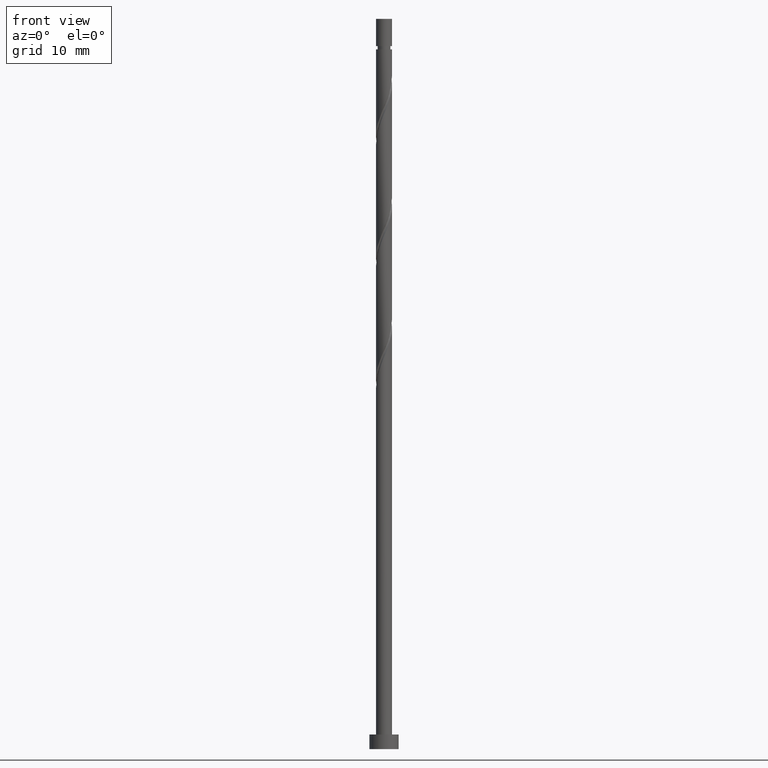
[diagram: clean part render]
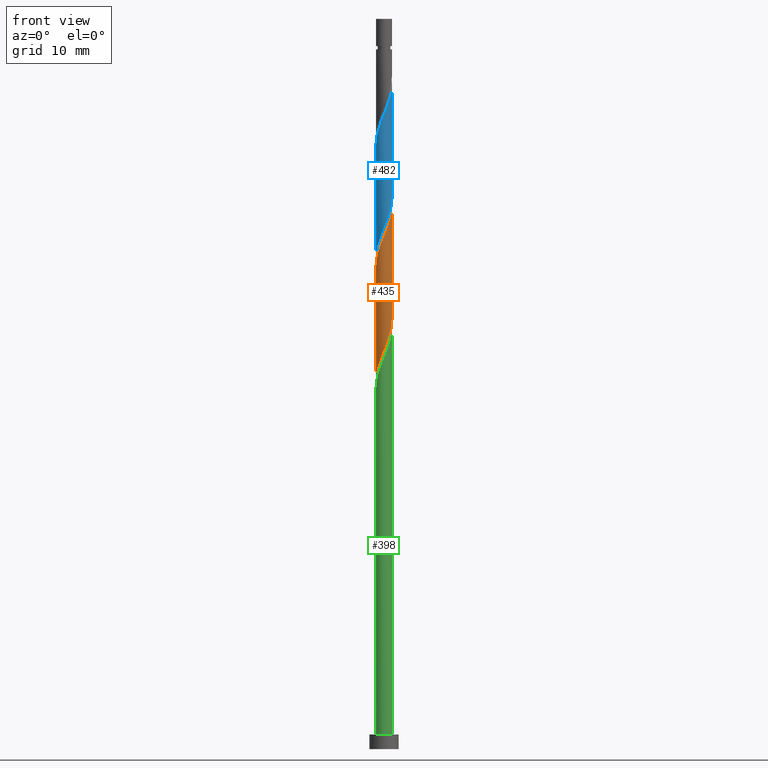
[diagram: same view with three faces highlighted in distinct colors, each labeled with its STEP entity id]
A machine part, front view with three faces highlighted in distinct colors.
Their STEP definitions:

[orange] entity #435 — the highlighted cylindrical surface (edge-blend (fillet) strip) has radius 1.1 mm, axis along (-0, -0, -1).
#12 = EDGE_CURVE ( 'NONE', #1101, #289, #198, .T. ) ;
#70 = EDGE_CURVE ( 'NONE', #289, #1154, #670, .T. ) ;
#88 = DIRECTION ( 'NONE',  ( -0.000000000000000000, -0.000000000000000000, -1.000000000000000000 ) ) ;
#97 = CARTESIAN_POINT ( 'NONE',  ( -1.043024003361354923, -0.3494294326642453652, 51.37571694667045819 ) ) ;
#128 = ORIENTED_EDGE ( 'NONE', *, *, #1298, .F. ) ;
#135 = CARTESIAN_POINT ( 'NONE',  ( -0.1630015969718410784, -1.087855909293428569, 69.89423546518897012 ) ) ;
#137 = ORIENTED_EDGE ( 'NONE', *, *, #747, .T. ) ;
#150 = CARTESIAN_POINT ( 'NONE',  ( -1.100000000000001643, 7.021314277040035436E-16, 66.12263983612612606 ) ) ;
#165 = VECTOR ( 'NONE', #329, 1000.000000000000000 ) ;
#171 = CARTESIAN_POINT ( 'NONE',  ( 1.094629887612834862, -0.2222740788686128899, 58.32016139111491526 ) ) ;
#198 =( BOUNDED_CURVE ( )  B_SPLINE_CURVE ( 2, ( #150, #599, #382, #847, #1297, #262, #727, #1184, #822, #1162, #135, #587, #1052, #404, #1221, #991, #763, #1439, #757, #1193, #855 ),
 .UNSPECIFIED., .F., .T. ) 
 B_SPLINE_CURVE_WITH_KNOTS ( ( 3, 2, 2, 2, 2, 2, 2, 2, 2, 2, 3 ),
 ( 0.3045248053855289516, 0.3055555555555555802, 0.3194444444444444198, 0.3333333333333333703, 0.3472222222222222099, 0.3611111111111111605, 0.3750000000000000000, 0.3888888888888888395, 0.4027777777777777901, 0.4166666666666666297, 0.4295248053855290071 ),
 .UNSPECIFIED. ) 
 CURVE ( )  GEOMETRIC_REPRESENTATION_ITEM ( )  RATIONAL_B_SPLINE_CURVE ( ( 0.9071930855141264738, 0.9080659294509741963, 0.9090909090909143897, 0.8952797754656487417, 0.9090909090909143897, 0.8952797754656487417, 0.9090909090909143897, 0.8952797754656487417, 0.9090909090909143897, 0.8952797754656487417, 0.9090909090909143897, 0.8952797754656487417, 0.9090909090909143897, 0.8952797754656487417, 0.9090909090909143897, 0.8952797754656487417, 0.9090909090909143897, 0.8952797754656487417, 0.9090909090909143897, 0.8963047551055889350, 0.9071930855141264738 ) ) 
 REPRESENTATION_ITEM ( '' )  );
#200 = CARTESIAN_POINT ( 'NONE',  ( -1.100000000000002309, 3.482310449497200798E-13, 50.51768294610282339 ) ) ;
#205 = CARTESIAN_POINT ( 'NONE',  ( -0.8606100546192091416, -0.6850914784817612180, 52.30164287259638201 ) ) ;
#211 = CARTESIAN_POINT ( 'NONE',  ( -1.100000000000000089, 0.000000000000000000, 100.0000000000000000 ) ) ;
#259 = EDGE_LOOP ( 'NONE', ( #982, #1342, #137, #128 ) ) ;
#262 = CARTESIAN_POINT ( 'NONE',  ( -0.9525934155692653560, -0.5832547827547226449, 67.57942065037416057 ) ) ;
#289 = VERTEX_POINT ( 'NONE', #1175 ) ;
#326 = AXIS2_PLACEMENT_3D ( 'NONE', #438, #895, #560 ) ;
#329 = DIRECTION ( 'NONE',  ( -0.000000000000000000, -0.000000000000000000, -1.000000000000000000 ) ) ;
#344 = CARTESIAN_POINT ( 'NONE',  ( -0.2188972361634567987, -1.078000000000001402, 54.15349472444821544 ) ) ;
#374 = CARTESIAN_POINT ( 'NONE',  ( 0.5252400318649718125, -0.9665003408827577136, 56.00534657630007729 ) ) ;
#382 = CARTESIAN_POINT ( 'NONE',  ( -1.099633863903274111, -0.02837895976176513582, 66.19053176148526063 ) ) ;
#384 = CARTESIAN_POINT ( 'NONE',  ( 0.6956601188265305602, -0.8738863519167895388, 56.46830953926305341 ) ) ;
#387 = CARTESIAN_POINT ( 'NONE',  ( 1.100000000000002309, -0.01419184176522177848, 58.81699890550463294 ) ) ;
#404 = CARTESIAN_POINT ( 'NONE',  ( 0.4089777213671819678, -1.039402511261871886, 71.28312435407787007 ) ) ;
#435 = ADVANCED_FACE ( 'NONE', ( #1241 ), #1350, .T. ) ;
#438 = CARTESIAN_POINT ( 'NONE',  ( 0.000000000000000000, 0.000000000000000000, 100.0000000000000000 ) ) ;
#463 = CARTESIAN_POINT ( 'NONE',  ( 0.9525934155692650229, -0.5832547827547235331, 57.39423546518897723 ) ) ;
#473 = CARTESIAN_POINT ( 'NONE',  ( 0.3548199449034128428, -1.059114329848726888, 55.54238361333711538 ) ) ;
#560 = DIRECTION ( 'NONE',  ( -1.000000000000000000, 0.000000000000000000, 0.000000000000000000 ) ) ;
#587 = CARTESIAN_POINT ( 'NONE',  ( 0.02881675095973075876, -1.116597488738132027, 70.35719842815196046 ) ) ;
#598 = CARTESIAN_POINT ( 'NONE',  ( 1.100000000000002087, 1.923391942912560376E-16, 58.85101627943698333 ) ) ;
#599 = CARTESIAN_POINT ( 'NONE',  ( -1.100000000000001643, -0.01419184176522127715, 66.15665721005848354 ) ) ;
#661 = CARTESIAN_POINT ( 'NONE',  ( -0.9814101665289963750, -0.5333427059834092709, 51.83867990963342010 ) ) ;
#670 = LINE ( 'NONE', #1360, #1286 ) ;
#721 = CARTESIAN_POINT ( 'NONE',  ( -0.7398099427094219083, -0.8368402509801140532, 52.76460583555933681 ) ) ;
#727 = CARTESIAN_POINT ( 'NONE',  ( -0.8241267671978979026, -0.7285705673357556478, 68.04238361333712248 ) ) ;
#747 = EDGE_CURVE ( 'NONE', #1101, #973, #1341, .T. ) ;
#757 = CARTESIAN_POINT ( 'NONE',  ( 1.043024003361354257, -0.3494294326642461423, 73.59793916889269383 ) ) ;
#763 = CARTESIAN_POINT ( 'NONE',  ( 0.8606100546192090306, -0.6850914784817612180, 72.67201324296674159 ) ) ;
#822 = CARTESIAN_POINT ( 'NONE',  ( -0.5252400318649721456, -0.9665003408827576026, 68.96830953926306051 ) ) ;
#840 = CARTESIAN_POINT ( 'NONE',  ( -0.5743938320383019658, -0.9381213811209921927, 53.22756879852229872 ) ) ;
#847 = CARTESIAN_POINT ( 'NONE',  ( -1.094629887612834862, -0.2222740788686125291, 66.65349472444823675 ) ) ;
#850 = CARTESIAN_POINT ( 'NONE',  ( 0.1630015969718409119, -1.087855909293429457, 55.07942065037414636 ) ) ;
#855 = CARTESIAN_POINT ( 'NONE',  ( 1.100000000000001643, -7.245398775243440088E-16, 74.45597316945948307 ) ) ;
#895 = DIRECTION ( 'NONE',  ( -0.000000000000000000, -0.000000000000000000, -1.000000000000000000 ) ) ;
#905 = CARTESIAN_POINT ( 'NONE',  ( -0.02881675095973152551, -1.116597488738132249, 54.61645768741120577 ) ) ;
#924 = CARTESIAN_POINT ( 'NONE',  ( 0.8241267671978976805, -0.7285705673357567580, 56.93127250222601532 ) ) ;
#930 = CARTESIAN_POINT ( 'NONE',  ( -0.4089777213671825784, -1.039402511261871664, 53.69053176148527484 ) ) ;
#971 =( BOUNDED_CURVE ( )  B_SPLINE_CURVE ( 2, ( #1413, #387, #1200, #171, #1086, #463, #924, #384, #374, #473, #850, #905, #344, #930, #840, #721, #205, #661, #97, #1472, #1205 ),
 .UNSPECIFIED., .F., .T. ) 
 B_SPLINE_CURVE_WITH_KNOTS ( ( 3, 2, 2, 2, 2, 2, 2, 2, 2, 2, 3 ),
 ( 0.8045248053855289516, 0.8055555555555555802, 0.8194444444444444198, 0.8333333333333333703, 0.8472222222222222099, 0.8611111111111111605, 0.8750000000000000000, 0.8888888888888888395, 0.9027777777777777901, 0.9166666666666666297, 0.9295248053855417192 ),
 .UNSPECIFIED. ) 
 CURVE ( )  GEOMETRIC_REPRESENTATION_ITEM ( )  RATIONAL_B_SPLINE_CURVE ( ( 0.9071930855141274730, 0.9080659294509751955, 0.9090909090909153889, 0.8952797754656497409, 0.9090909090909153889, 0.8952797754656497409, 0.9090909090909153889, 0.8952797754656497409, 0.9090909090909153889, 0.8952797754656497409, 0.9090909090909153889, 0.8952797754656497409, 0.9090909090909153889, 0.8952797754656497409, 0.9090909090909153889, 0.8952797754656497409, 0.9090909090909153889, 0.8952797754656497409, 0.9090909090909153889, 0.8963047551055772777, 0.9071930855141490113 ) ) 
 REPRESENTATION_ITEM ( '' )  );
#973 = VERTEX_POINT ( 'NONE', #200 ) ;
#982 = ORIENTED_EDGE ( 'NONE', *, *, #70, .F. ) ;
#991 = CARTESIAN_POINT ( 'NONE',  ( 0.7398099427094214642, -0.8368402509801139422, 72.20905028000380810 ) ) ;
#1002 = CARTESIAN_POINT ( 'NONE',  ( -1.100000000000001643, 7.021314277040034450E-16, 66.12263983612612606 ) ) ;
#1052 = CARTESIAN_POINT ( 'NONE',  ( 0.2188972361634565766, -1.078000000000001624, 70.82016139111489395 ) ) ;
#1086 = CARTESIAN_POINT ( 'NONE',  ( 1.023611651591050054, -0.4027644308116674621, 57.85719842815192493 ) ) ;
#1101 = VERTEX_POINT ( 'NONE', #1002 ) ;
#1154 = VERTEX_POINT ( 'NONE', #598 ) ;
#1162 = CARTESIAN_POINT ( 'NONE',  ( -0.3548199449034129538, -1.059114329848726443, 69.43127250222602243 ) ) ;
#1175 = CARTESIAN_POINT ( 'NONE',  ( 1.100000000000001643, -7.245398775243440088E-16, 74.45597316945946886 ) ) ;
#1184 = CARTESIAN_POINT ( 'NONE',  ( -0.6956601188265306712, -0.8738863519167894278, 68.50534657630009860 ) ) ;
#1193 = CARTESIAN_POINT ( 'NONE',  ( 1.100000000000000977, -0.1793598090025041170, 74.02605365709383989 ) ) ;
#1200 = CARTESIAN_POINT ( 'NONE',  ( 1.099633863903273889, -0.02837895976176561114, 58.78312435407785586 ) ) ;
#1205 = CARTESIAN_POINT ( 'NONE',  ( -1.100000000000002309, 3.482310449497200798E-13, 50.51768294610282339 ) ) ;
#1221 = CARTESIAN_POINT ( 'NONE',  ( 0.5743938320383018548, -0.9381213811209924147, 71.74608731704080355 ) ) ;
#1241 = FACE_OUTER_BOUND ( 'NONE', #259, .T. ) ;
#1286 = VECTOR ( 'NONE', #88, 1000.000000000000000 ) ;
#1297 = CARTESIAN_POINT ( 'NONE',  ( -1.023611651591049831, -0.4027644308116674621, 67.11645768741119866 ) ) ;
#1298 = EDGE_CURVE ( 'NONE', #1154, #973, #971, .T. ) ;
#1341 = LINE ( 'NONE', #211, #165 ) ;
#1342 = ORIENTED_EDGE ( 'NONE', *, *, #12, .F. ) ;
#1350 = CYLINDRICAL_SURFACE ( 'NONE', #326, 1.100000000000000089 ) ;
#1360 = CARTESIAN_POINT ( 'NONE',  ( 1.100000000000000089, 1.347111479062088503E-16, 100.0000000000000000 ) ) ;
#1413 = CARTESIAN_POINT ( 'NONE',  ( 1.100000000000002087, 1.923391942912560376E-16, 58.85101627943698333 ) ) ;
#1439 = CARTESIAN_POINT ( 'NONE',  ( 0.9814101665289961529, -0.5333427059834093820, 73.13497620592974613 ) ) ;
#1472 = CARTESIAN_POINT ( 'NONE',  ( -1.100000000000059153, -0.1793598090023328928, 50.94760245846887159 ) ) ;

[blue] entity #482 — the highlighted cylindrical surface (edge-blend (fillet) strip) has radius 1.1 mm, axis along (-0, -0, -1).
#14 = CARTESIAN_POINT ( 'NONE',  ( 0.5743938320383018548, -0.9381213811209924147, 88.41275398370753180 ) ) ;
#149 = CARTESIAN_POINT ( 'NONE',  ( -1.099633863903274111, -0.02837895976176513582, 82.85719842815196046 ) ) ;
#162 = VERTEX_POINT ( 'NONE', #553 ) ;
#193 = CARTESIAN_POINT ( 'NONE',  ( 0.5252400318649718125, -0.9665003408827577136, 72.67201324296672738 ) ) ;
#231 = CARTESIAN_POINT ( 'NONE',  ( 0.02881675095973075876, -1.116597488738132027, 87.02386509481863186 ) ) ;
#246 = CARTESIAN_POINT ( 'NONE',  ( -1.100000000000001643, -0.01419184176521504775, 82.82332387672516916 ) ) ;
#311 = CARTESIAN_POINT ( 'NONE',  ( -0.4089777213671825784, -1.039402511261871664, 70.35719842815194625 ) ) ;
#332 = DIRECTION ( 'NONE',  ( -1.000000000000000000, 0.000000000000000000, 0.000000000000000000 ) ) ;
#338 = CARTESIAN_POINT ( 'NONE',  ( -1.100000000000000089, 0.000000000000000000, 100.0000000000000000 ) ) ;
#339 = CARTESIAN_POINT ( 'NONE',  ( 1.099633863903273889, -0.02837895976176561114, 75.44979102074452726 ) ) ;
#355 = CARTESIAN_POINT ( 'NONE',  ( 0.4089777213671819678, -1.039402511261871886, 87.94979102074452726 ) ) ;
#356 = AXIS2_PLACEMENT_3D ( 'NONE', #1367, #1454, #332 ) ;
#357 = CARTESIAN_POINT ( 'NONE',  ( -1.100000000000058042, -0.1793598090023358349, 67.61426912513550747 ) ) ;
#365 = CARTESIAN_POINT ( 'NONE',  ( -1.043024003361354923, -0.3494294326642453652, 68.04238361333710827 ) ) ;
#371 = CARTESIAN_POINT ( 'NONE',  ( -0.8241267671978979026, -0.7285705673357556478, 84.70905028000377968 ) ) ;
#377 = ORIENTED_EDGE ( 'NONE', *, *, #1168, .T. ) ;
#428 = LINE ( 'NONE', #449, #912 ) ;
#436 = CARTESIAN_POINT ( 'NONE',  ( -0.02881675095973152551, -1.116597488738132249, 71.28312435407788428 ) ) ;
#449 = CARTESIAN_POINT ( 'NONE',  ( 1.100000000000000089, 1.347111479062088503E-16, 100.0000000000000000 ) ) ;
#458 = CARTESIAN_POINT ( 'NONE',  ( 1.023611651591050054, -0.4027644308116674621, 74.52386509481857502 ) ) ;
#467 = CARTESIAN_POINT ( 'NONE',  ( 0.2188972361634565766, -1.078000000000001624, 87.48682805778157956 ) ) ;
#477 = CARTESIAN_POINT ( 'NONE',  ( 0.8606100546192090306, -0.6850914784817612180, 89.33867990963342720 ) ) ;
#482 = ADVANCED_FACE ( 'NONE', ( #667 ), #1025, .T. ) ;
#541 = CARTESIAN_POINT ( 'NONE',  ( 1.094629887612834862, -0.2222740788686128899, 74.98682805778155114 ) ) ;
#553 = CARTESIAN_POINT ( 'NONE',  ( 1.100000000000002087, 1.923391942912560376E-16, 75.51768294610366183 ) ) ;
#573 = CARTESIAN_POINT ( 'NONE',  ( -1.100000000000002309, 3.482310449497200798E-13, 67.18434961276948059 ) ) ;
#580 = CARTESIAN_POINT ( 'NONE',  ( -1.094629887612834862, -0.2222740788686125291, 83.32016139111493658 ) ) ;
#627 = EDGE_CURVE ( 'NONE', #1272, #162, #428, .T. ) ;
#647 =( BOUNDED_CURVE ( )  B_SPLINE_CURVE ( 2, ( #803, #246, #149, #580, #947, #1278, #371, #1373, #831, #1261, #1066, #231, #467, #355, #14, #927, #477, #683, #1051, #703, #932 ),
 .UNSPECIFIED., .F., .T. ) 
 B_SPLINE_CURVE_WITH_KNOTS ( ( 3, 2, 2, 2, 2, 2, 2, 2, 2, 2, 3 ),
 ( 0.5545248053855285075, 0.5555555555555555802, 0.5694444444444444198, 0.5833333333333332593, 0.5972222222222222099, 0.6111111111111111605, 0.6250000000000000000, 0.6388888888888888395, 0.6527777777777777901, 0.6666666666666667407, 0.6795248053855291737 ),
 .UNSPECIFIED. ) 
 CURVE ( )  GEOMETRIC_REPRESENTATION_ITEM ( )  RATIONAL_B_SPLINE_CURVE ( ( 0.9071930855141256966, 0.9080659294509737522, 0.9090909090909143897, 0.8952797754656487417, 0.9090909090909143897, 0.8952797754656487417, 0.9090909090909143897, 0.8952797754656487417, 0.9090909090909143897, 0.8952797754656487417, 0.9090909090909143897, 0.8952797754656487417, 0.9090909090909143897, 0.8952797754656487417, 0.9090909090909143897, 0.8952797754656487417, 0.9090909090909143897, 0.8952797754656487417, 0.9090909090909143897, 0.8963047551055887130, 0.9071930855141268069 ) ) 
 REPRESENTATION_ITEM ( '' )  );
#649 = ORIENTED_EDGE ( 'NONE', *, *, #627, .F. ) ;
#667 = FACE_OUTER_BOUND ( 'NONE', #1224, .T. ) ;
#675 = DIRECTION ( 'NONE',  ( -0.000000000000000000, -0.000000000000000000, -1.000000000000000000 ) ) ;
#683 = CARTESIAN_POINT ( 'NONE',  ( 0.9814101665289961529, -0.5333427059834093820, 89.80164287259638911 ) ) ;
#684 = CARTESIAN_POINT ( 'NONE',  ( -0.9814101665289963750, -0.5333427059834092709, 68.50534657630007018 ) ) ;
#703 = CARTESIAN_POINT ( 'NONE',  ( 1.100000000000001643, -0.1793598090025019798, 90.69272032376051129 ) ) ;
#713 =( BOUNDED_CURVE ( )  B_SPLINE_CURVE ( 2, ( #1029, #1487, #339, #541, #458, #919, #804, #1230, #193, #1004, #1458, #436, #891, #311, #782, #1238, #933, #684, #365, #357, #573 ),
 .UNSPECIFIED., .F., .T. ) 
 B_SPLINE_CURVE_WITH_KNOTS ( ( 3, 2, 2, 2, 2, 2, 2, 2, 2, 2, 3 ),
 ( 0.5545248053855290626, 0.5555555555555555802, 0.5694444444444444198, 0.5833333333333333703, 0.5972222222222222099, 0.6111111111111111605, 0.6250000000000000000, 0.6388888888888888395, 0.6527777777777777901, 0.6666666666666666297, 0.6795248053855414971 ),
 .UNSPECIFIED. ) 
 CURVE ( )  GEOMETRIC_REPRESENTATION_ITEM ( )  RATIONAL_B_SPLINE_CURVE ( ( 0.9071930855141276950, 0.9080659294509753066, 0.9090909090909153889, 0.8952797754656497409, 0.9090909090909153889, 0.8952797754656497409, 0.9090909090909153889, 0.8952797754656497409, 0.9090909090909153889, 0.8952797754656497409, 0.9090909090909153889, 0.8952797754656497409, 0.9090909090909153889, 0.8952797754656497409, 0.9090909090909153889, 0.8952797754656497409, 0.9090909090909153889, 0.8952797754656497409, 0.9090909090909153889, 0.8963047551055774997, 0.9071930855141486783 ) ) 
 REPRESENTATION_ITEM ( '' )  );
#766 = VERTEX_POINT ( 'NONE', #1477 ) ;
#782 = CARTESIAN_POINT ( 'NONE',  ( -0.5743938320383019658, -0.9381213811209921927, 69.89423546518894170 ) ) ;
#803 = CARTESIAN_POINT ( 'NONE',  ( -1.100000000000001643, 8.235105308975148076E-16, 82.78930650279284009 ) ) ;
#804 = CARTESIAN_POINT ( 'NONE',  ( 0.8241267671978976805, -0.7285705673357567580, 73.59793916889265120 ) ) ;
#831 = CARTESIAN_POINT ( 'NONE',  ( -0.5252400318649721456, -0.9665003408827576026, 85.63497620592971771 ) ) ;
#858 = CARTESIAN_POINT ( 'NONE',  ( -1.100000000000002309, 3.482310449497200798E-13, 67.18434961276948059 ) ) ;
#864 = EDGE_CURVE ( 'NONE', #162, #1460, #713, .T. ) ;
#891 = CARTESIAN_POINT ( 'NONE',  ( -0.2188972361634567987, -1.078000000000001402, 70.82016139111487973 ) ) ;
#912 = VECTOR ( 'NONE', #675, 1000.000000000000000 ) ;
#919 = CARTESIAN_POINT ( 'NONE',  ( 0.9525934155692650229, -0.5832547827547235331, 74.06090213185565574 ) ) ;
#927 = CARTESIAN_POINT ( 'NONE',  ( 0.7398099427094214642, -0.8368402509801139422, 88.87571694667047950 ) ) ;
#932 = CARTESIAN_POINT ( 'NONE',  ( 1.100000000000001643, -8.403168682627701072E-16, 91.12263983612612606 ) ) ;
#933 = CARTESIAN_POINT ( 'NONE',  ( -0.8606100546192091416, -0.6850914784817612180, 68.96830953926304630 ) ) ;
#947 = CARTESIAN_POINT ( 'NONE',  ( -1.023611651591049831, -0.4027644308116674621, 83.78312435407788428 ) ) ;
#1004 = CARTESIAN_POINT ( 'NONE',  ( 0.3548199449034128428, -1.059114329848726888, 72.20905028000379389 ) ) ;
#1025 = CYLINDRICAL_SURFACE ( 'NONE', #356, 1.100000000000000089 ) ;
#1029 = CARTESIAN_POINT ( 'NONE',  ( 1.100000000000002087, 1.923391942912560376E-16, 75.51768294610366183 ) ) ;
#1051 = CARTESIAN_POINT ( 'NONE',  ( 1.043024003361354257, -0.3494294326642461423, 90.26460583555930839 ) ) ;
#1066 = CARTESIAN_POINT ( 'NONE',  ( -0.1630015969718410784, -1.087855909293428569, 86.56090213185564153 ) ) ;
#1116 = EDGE_CURVE ( 'NONE', #766, #1272, #647, .T. ) ;
#1145 = DIRECTION ( 'NONE',  ( -0.000000000000000000, -0.000000000000000000, -1.000000000000000000 ) ) ;
#1168 = EDGE_CURVE ( 'NONE', #766, #1460, #1402, .T. ) ;
#1183 = CARTESIAN_POINT ( 'NONE',  ( 1.100000000000001643, -8.403168682627701072E-16, 91.12263983612612606 ) ) ;
#1204 = VECTOR ( 'NONE', #1145, 1000.000000000000000 ) ;
#1224 = EDGE_LOOP ( 'NONE', ( #649, #1405, #377, #1332 ) ) ;
#1230 = CARTESIAN_POINT ( 'NONE',  ( 0.6956601188265305602, -0.8738863519167895388, 73.13497620592973192 ) ) ;
#1238 = CARTESIAN_POINT ( 'NONE',  ( -0.7398099427094219083, -0.8368402509801140532, 69.43127250222602243 ) ) ;
#1261 = CARTESIAN_POINT ( 'NONE',  ( -0.3548199449034129538, -1.059114329848726443, 86.09793916889269383 ) ) ;
#1272 = VERTEX_POINT ( 'NONE', #1183 ) ;
#1278 = CARTESIAN_POINT ( 'NONE',  ( -0.9525934155692653560, -0.5832547827547226449, 84.24608731704083198 ) ) ;
#1332 = ORIENTED_EDGE ( 'NONE', *, *, #864, .F. ) ;
#1367 = CARTESIAN_POINT ( 'NONE',  ( 0.000000000000000000, 0.000000000000000000, 100.0000000000000000 ) ) ;
#1373 = CARTESIAN_POINT ( 'NONE',  ( -0.6956601188265306712, -0.8738863519167894278, 85.17201324296675580 ) ) ;
#1402 = LINE ( 'NONE', #338, #1204 ) ;
#1405 = ORIENTED_EDGE ( 'NONE', *, *, #1116, .F. ) ;
#1454 = DIRECTION ( 'NONE',  ( -0.000000000000000000, -0.000000000000000000, -1.000000000000000000 ) ) ;
#1458 = CARTESIAN_POINT ( 'NONE',  ( 0.1630015969718409119, -1.087855909293429457, 71.74608731704080355 ) ) ;
#1460 = VERTEX_POINT ( 'NONE', #858 ) ;
#1477 = CARTESIAN_POINT ( 'NONE',  ( -1.100000000000001643, 8.235105308975148076E-16, 82.78930650279282588 ) ) ;
#1487 = CARTESIAN_POINT ( 'NONE',  ( 1.100000000000002087, -0.01419184176522330330, 75.48366557217130435 ) ) ;

[green] entity #398 — the highlighted cylindrical surface (edge-blend (fillet) strip) has radius 1.1 mm, axis along (-0, -0, -1).
#3 = CARTESIAN_POINT ( 'NONE',  ( 0.000000000000000000, 0.000000000000000000, 2.000000000000000000 ) ) ;
#25 = CARTESIAN_POINT ( 'NONE',  ( 1.100000000000001643, -7.245398775243440088E-16, 57.78930650279280457 ) ) ;
#52 = EDGE_CURVE ( 'NONE', #1416, #1311, #73, .T. ) ;
#65 = DIRECTION ( 'NONE',  ( -0.000000000000000000, -0.000000000000000000, -1.000000000000000000 ) ) ;
#72 = CARTESIAN_POINT ( 'NONE',  ( 0.000000000000000000, 0.000000000000000000, 100.0000000000000000 ) ) ;
#73 = LINE ( 'NONE', #871, #1046 ) ;
#81 = CARTESIAN_POINT ( 'NONE',  ( -1.100000000000001643, 7.021314277040034450E-16, 49.45597316945947597 ) ) ;
#91 = DIRECTION ( 'NONE',  ( -0.000000000000000000, -0.000000000000000000, -1.000000000000000000 ) ) ;
#108 = CARTESIAN_POINT ( 'NONE',  ( -1.100000000000001421, -0.01419184176522346290, 49.48999054339181924 ) ) ;
#111 = CARTESIAN_POINT ( 'NONE',  ( 1.100000000000000089, 1.347111479062088503E-16, 2.000000000000000000 ) ) ;
#197 = CARTESIAN_POINT ( 'NONE',  ( 1.100000000000001643, -7.245398775243441074E-16, 57.78930650279280457 ) ) ;
#201 = ORIENTED_EDGE ( 'NONE', *, *, #631, .F. ) ;
#206 = EDGE_CURVE ( 'NONE', #1416, #1180, #1431, .T. ) ;
#302 = CARTESIAN_POINT ( 'NONE',  ( 0.02881675095973075876, -1.116597488738132027, 53.69053176148528195 ) ) ;
#308 = DIRECTION ( 'NONE',  ( -1.000000000000000000, 0.000000000000000000, 0.000000000000000000 ) ) ;
#398 = ADVANCED_FACE ( 'NONE', ( #643 ), #777, .T. ) ;
#401 = ORIENTED_EDGE ( 'NONE', *, *, #206, .F. ) ;
#407 = AXIS2_PLACEMENT_3D ( 'NONE', #3, #461, #922 ) ;
#425 = CARTESIAN_POINT ( 'NONE',  ( -0.5252400318649721456, -0.9665003408827576026, 52.30164287259637490 ) ) ;
#453 = CIRCLE ( 'NONE', #407, 1.100000000000000089 ) ;
#454 = CARTESIAN_POINT ( 'NONE',  ( -0.9525934155692653560, -0.5832547827547226449, 50.91275398370750338 ) ) ;
#461 = DIRECTION ( 'NONE',  ( 0.000000000000000000, 0.000000000000000000, 1.000000000000000000 ) ) ;
#508 = ORIENTED_EDGE ( 'NONE', *, *, #52, .T. ) ;
#539 = CARTESIAN_POINT ( 'NONE',  ( 0.5743938320383018548, -0.9381213811209924147, 55.07942065037415347 ) ) ;
#542 = ORIENTED_EDGE ( 'NONE', *, *, #566, .T. ) ;
#561 = CARTESIAN_POINT ( 'NONE',  ( -1.094629887612834862, -0.2222740788686125291, 49.98682805778155824 ) ) ;
#566 = EDGE_CURVE ( 'NONE', #1311, #1077, #453, .T. ) ;
#570 = CARTESIAN_POINT ( 'NONE',  ( -1.023611651591049831, -0.4027644308116674621, 50.44979102074452726 ) ) ;
#631 = EDGE_CURVE ( 'NONE', #1180, #1077, #1374, .T. ) ;
#634 = VECTOR ( 'NONE', #91, 1000.000000000000000 ) ;
#643 = FACE_OUTER_BOUND ( 'NONE', #1357, .T. ) ;
#674 = CARTESIAN_POINT ( 'NONE',  ( -1.100000000000000089, 0.000000000000000000, 2.000000000000000000 ) ) ;
#681 = CARTESIAN_POINT ( 'NONE',  ( -1.099633863903274111, -0.02837895976176513582, 49.52386509481859633 ) ) ;
#770 = CARTESIAN_POINT ( 'NONE',  ( 0.2188972361634565766, -1.078000000000001624, 54.15349472444824386 ) ) ;
#777 = CYLINDRICAL_SURFACE ( 'NONE', #1201, 1.100000000000000089 ) ;
#780 = CARTESIAN_POINT ( 'NONE',  ( 1.043024003361354257, -0.3494294326642461423, 56.93127250222600111 ) ) ;
#871 = CARTESIAN_POINT ( 'NONE',  ( -1.100000000000000089, 0.000000000000000000, 100.0000000000000000 ) ) ;
#881 = CARTESIAN_POINT ( 'NONE',  ( -0.3548199449034129538, -1.059114329848726443, 52.76460583555935813 ) ) ;
#889 = CARTESIAN_POINT ( 'NONE',  ( 0.8606100546192090306, -0.6850914784817612180, 56.00534657630008439 ) ) ;
#914 = DIRECTION ( 'NONE',  ( -0.000000000000000000, -0.000000000000000000, -1.000000000000000000 ) ) ;
#922 = DIRECTION ( 'NONE',  ( 1.000000000000000000, 0.000000000000000000, 0.000000000000000000 ) ) ;
#1046 = VECTOR ( 'NONE', #65, 1000.000000000000000 ) ;
#1077 = VERTEX_POINT ( 'NONE', #111 ) ;
#1121 = CARTESIAN_POINT ( 'NONE',  ( 1.100000000000000089, 1.347111479062088503E-16, 100.0000000000000000 ) ) ;
#1180 = VERTEX_POINT ( 'NONE', #25 ) ;
#1195 = CARTESIAN_POINT ( 'NONE',  ( -1.100000000000001643, 7.021314277040034450E-16, 49.45597316945947597 ) ) ;
#1201 = AXIS2_PLACEMENT_3D ( 'NONE', #72, #914, #308 ) ;
#1228 = CARTESIAN_POINT ( 'NONE',  ( 0.4089777213671819678, -1.039402511261871886, 54.61645768741121287 ) ) ;
#1234 = CARTESIAN_POINT ( 'NONE',  ( 1.100000000000000977, -0.1793598090025045055, 57.35938699042718980 ) ) ;
#1311 = VERTEX_POINT ( 'NONE', #674 ) ;
#1336 = CARTESIAN_POINT ( 'NONE',  ( -0.1630015969718410784, -1.087855909293428569, 53.22756879852231293 ) ) ;
#1345 = CARTESIAN_POINT ( 'NONE',  ( 0.9814101665289961529, -0.5333427059834093820, 56.46830953926304630 ) ) ;
#1357 = EDGE_LOOP ( 'NONE', ( #201, #401, #508, #542 ) ) ;
#1371 = CARTESIAN_POINT ( 'NONE',  ( -0.8241267671978979026, -0.7285705673357556478, 51.37571694667046529 ) ) ;
#1374 = LINE ( 'NONE', #1121, #634 ) ;
#1416 = VERTEX_POINT ( 'NONE', #1195 ) ;
#1431 =( BOUNDED_CURVE ( )  B_SPLINE_CURVE ( 2, ( #81, #108, #681, #561, #570, #454, #1371, #1447, #425, #881, #1336, #302, #770, #1228, #539, #1456, #889, #1345, #780, #1234, #197 ),
 .UNSPECIFIED., .F., .T. ) 
 B_SPLINE_CURVE_WITH_KNOTS ( ( 3, 2, 2, 2, 2, 2, 2, 2, 2, 2, 3 ),
 ( 0.05452480538552911121, 0.05555555555555558023, 0.06944444444444441977, 0.08333333333333337034, 0.09722222222222220989, 0.1111111111111111605, 0.1250000000000000000, 0.1388888888888888395, 0.1527777777777777901, 0.1666666666666666297, 0.1795248053855289794 ),
 .UNSPECIFIED. ) 
 CURVE ( )  GEOMETRIC_REPRESENTATION_ITEM ( )  RATIONAL_B_SPLINE_CURVE ( ( 0.9071930855141266958, 0.9080659294509743074, 0.9090909090909143897, 0.8952797754656487417, 0.9090909090909143897, 0.8952797754656487417, 0.9090909090909143897, 0.8952797754656487417, 0.9090909090909143897, 0.8952797754656487417, 0.9090909090909143897, 0.8952797754656487417, 0.9090909090909143897, 0.8952797754656487417, 0.9090909090909143897, 0.8952797754656487417, 0.9090909090909143897, 0.8952797754656487417, 0.9090909090909143897, 0.8963047551055889350, 0.9071930855141265848 ) ) 
 REPRESENTATION_ITEM ( '' )  );
#1447 = CARTESIAN_POINT ( 'NONE',  ( -0.6956601188265306712, -0.8738863519167894278, 51.83867990963341299 ) ) ;
#1456 = CARTESIAN_POINT ( 'NONE',  ( 0.7398099427094214642, -0.8368402509801139422, 55.54238361333712959 ) ) ;